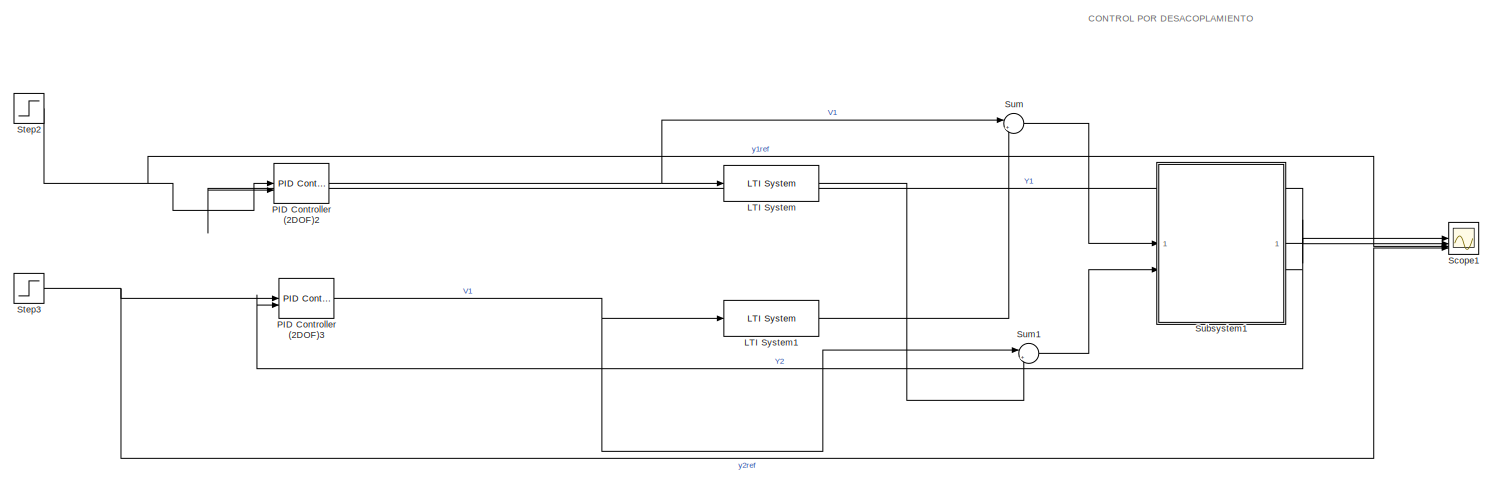
[diagram: root canvas - part 1/2, center side, full height]
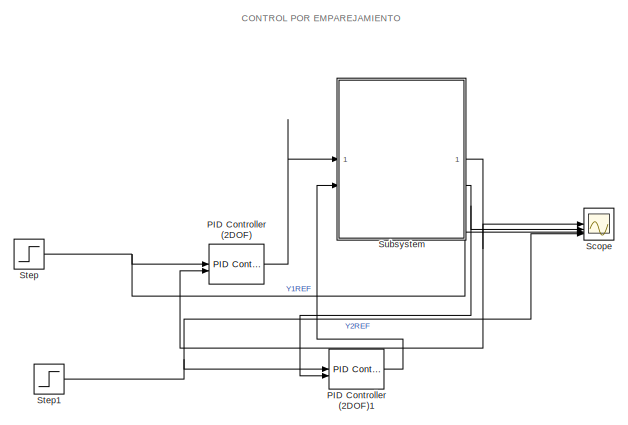
[diagram: root canvas - part 2/2, left side, full height]
MODEL slx_65c140ed6846
KIND model
CONFIG AbsTol = auto
CONFIG EnableMultiTasking = off
CONFIG FixedStep = auto
CONFIG MaxStep = auto
CONFIG MinStep = auto
CONFIG RelTol = 1e-3
CONFIG SampleTimeConstraint = Unconstrained
CONFIG SolverName = VariableStepAuto
CONFIG StartTime = 0.0
CONFIG StopTime = 300
BLOCK [Reference] LTI System  REF=cstblocks/LTI System
  SourceBlock = cstblocks/LTI System
  SourceType = LTI Block
BLOCK [Reference] LTI System1  REF=cstblocks/LTI System
  SourceBlock = cstblocks/LTI System
  SourceType = LTI Block
BLOCK [Reference] PID Controller (2DOF)  REF=slpidlib/PID Controller (2DOF)
  LibrarySourceBlock = simulink/Continuous/PID Controller (2DOF)
  SourceBlock = slpidlib/PID Controller (2DOF)
  SourceType = PID 2dof
BLOCK [Reference] PID Controller (2DOF)1  REF=slpidlib/PID Controller (2DOF)
  LibrarySourceBlock = simulink/Continuous/PID Controller (2DOF)
  SourceBlock = slpidlib/PID Controller (2DOF)
  SourceType = PID 2dof
BLOCK [Reference] PID Controller (2DOF)2  REF=slpidlib/PID Controller (2DOF)
  LibrarySourceBlock = simulink/Continuous/PID Controller (2DOF)
  SourceBlock = slpidlib/PID Controller (2DOF)
  SourceType = PID 2dof
BLOCK [Reference] PID Controller (2DOF)3  REF=slpidlib/PID Controller (2DOF)
  LibrarySourceBlock = simulink/Continuous/PID Controller (2DOF)
  SourceBlock = slpidlib/PID Controller (2DOF)
  SourceType = PID 2dof
BLOCK [Scope] Scope
  Floating = off
  NumInputPorts = 4
  ScopeSpecificationString = Simulink.scopes.TimeScopeBlockCfg('CurrentConfiguration', extmgr.ConfigurationSet(extmgr.Configuration('Core','General UI',true),extmgr.Configuration('Core','Source UI',true),extmgr.Configuration('Sources','WiredSimulink',true),extmgr.Configuration('Visuals','Time Domain',true,'SerializedDisplays',{struct('MinYLimReal','-0.19637','MaxYLimReal','1.37928','YLabelReal','','MinYLimMag','0.00000','MaxY...<+1794ch>
BLOCK [Scope] Scope1
  Floating = off
  NumInputPorts = 4
  ScopeSpecificationString = Simulink.scopes.TimeScopeBlockCfg('CurrentConfiguration', extmgr.ConfigurationSet(extmgr.Configuration('Core','General UI',true),extmgr.Configuration('Core','Source UI',true),extmgr.Configuration('Sources','WiredSimulink',true,'DataLoggingVariableName','ScopeData1'),extmgr.Configuration('Visuals','Time Domain',true,'SerializedDisplays',{struct('MinYLimReal','0.92169','MaxYLimReal','1.19134','YLabe...<+1812ch>
BLOCK [Step] Step
  SampleTime = 0
  Time = 100
BLOCK [Step] Step1
  SampleTime = 0
BLOCK [Step] Step2
  SampleTime = 0
  Time = 100
BLOCK [Step] Step3
  SampleTime = 0
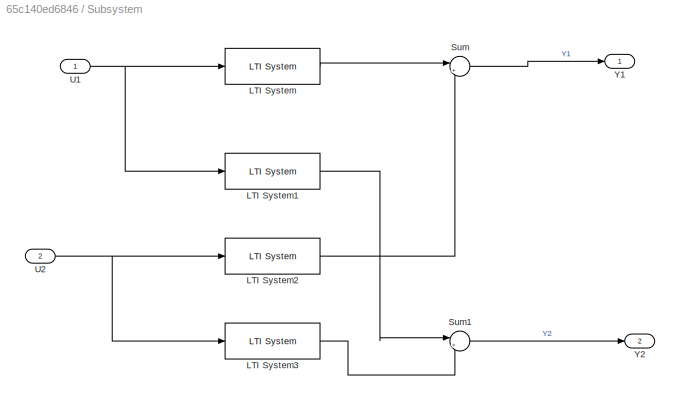
BLOCK [SubSystem] Subsystem
BLOCK [Reference] Subsystem/LTI System  REF=cstblocks/LTI System
  SourceBlock = cstblocks/LTI System
  SourceType = LTI Block
BLOCK [Reference] Subsystem/LTI System1  REF=cstblocks/LTI System
  SourceBlock = cstblocks/LTI System
  SourceType = LTI Block
BLOCK [Reference] Subsystem/LTI System2  REF=cstblocks/LTI System
  SourceBlock = cstblocks/LTI System
  SourceType = LTI Block
BLOCK [Reference] Subsystem/LTI System3  REF=cstblocks/LTI System
  SourceBlock = cstblocks/LTI System
  SourceType = LTI Block
BLOCK [Sum] Subsystem/Sum
  Inputs = |++
BLOCK [Sum] Subsystem/Sum1
  Inputs = |++
BLOCK [Inport] Subsystem/U1
BLOCK [Inport] Subsystem/U2
  Port = 2
BLOCK [Outport] Subsystem/Y1
BLOCK [Outport] Subsystem/Y2
  Port = 2
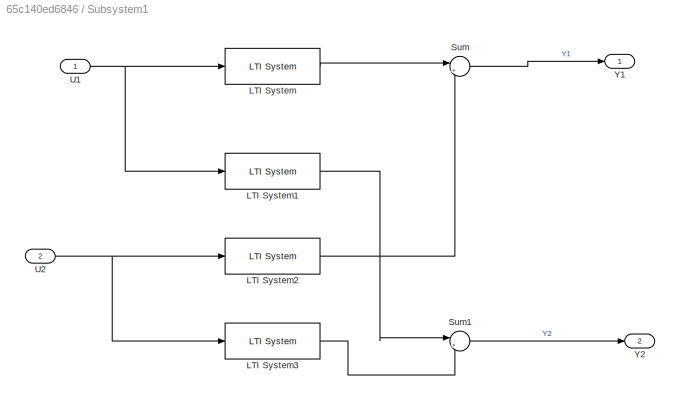
BLOCK [SubSystem] Subsystem1
BLOCK [Reference] Subsystem1/LTI System  REF=cstblocks/LTI System
  SourceBlock = cstblocks/LTI System
  SourceType = LTI Block
BLOCK [Reference] Subsystem1/LTI System1  REF=cstblocks/LTI System
  SourceBlock = cstblocks/LTI System
  SourceType = LTI Block
BLOCK [Reference] Subsystem1/LTI System2  REF=cstblocks/LTI System
  SourceBlock = cstblocks/LTI System
  SourceType = LTI Block
BLOCK [Reference] Subsystem1/LTI System3  REF=cstblocks/LTI System
  SourceBlock = cstblocks/LTI System
  SourceType = LTI Block
BLOCK [Sum] Subsystem1/Sum
  Inputs = |++
BLOCK [Sum] Subsystem1/Sum1
  Inputs = |++
BLOCK [Inport] Subsystem1/U1
BLOCK [Inport] Subsystem1/U2
  Port = 2
BLOCK [Outport] Subsystem1/Y1
BLOCK [Outport] Subsystem1/Y2
  Port = 2
BLOCK [Sum] Sum
  Inputs = |++
BLOCK [Sum] Sum1
  Inputs = |++
ANNOTATION (root): CONTROL POR DESACOPLAMIENTO
ANNOTATION (root): CONTROL POR EMPAREJAMIENTO
LINE LTI System1:1 -> Sum:2
LINE LTI System:1 -> Sum1:2
LINE PID Controller (2DOF)1:1 -> Subsystem:2
NET PID Controller (2DOF)2:1 -> LTI System:1, Sum:1
NET PID Controller (2DOF)3:1 -> LTI System1:1, Sum1:1
LINE PID Controller (2DOF):1 -> Subsystem:1
NET Step1:1 -> PID Controller (2DOF)1:1, Scope:4
NET Step2:1 -> PID Controller (2DOF)2:1, Scope1:3
NET Step3:1 -> PID Controller (2DOF)3:1, Scope1:4
NET Step:1 -> PID Controller (2DOF):1, Scope:3
LINE Subsystem/LTI System1:1 -> Subsystem/Sum1:1
LINE Subsystem/LTI System2:1 -> Subsystem/Sum:2
LINE Subsystem/LTI System3:1 -> Subsystem/Sum1:2
LINE Subsystem/LTI System:1 -> Subsystem/Sum:1
LINE Subsystem/Sum1:1 -> Subsystem/Y2:1
LINE Subsystem/Sum:1 -> Subsystem/Y1:1
NET Subsystem/U1:1 -> Subsystem/LTI System1:1, Subsystem/LTI System:1
NET Subsystem/U2:1 -> Subsystem/LTI System2:1, Subsystem/LTI System3:1
LINE Subsystem1/LTI System1:1 -> Subsystem1/Sum1:1
LINE Subsystem1/LTI System2:1 -> Subsystem1/Sum:2
LINE Subsystem1/LTI System3:1 -> Subsystem1/Sum1:2
LINE Subsystem1/LTI System:1 -> Subsystem1/Sum:1
LINE Subsystem1/Sum1:1 -> Subsystem1/Y2:1
LINE Subsystem1/Sum:1 -> Subsystem1/Y1:1
NET Subsystem1/U1:1 -> Subsystem1/LTI System1:1, Subsystem1/LTI System:1
NET Subsystem1/U2:1 -> Subsystem1/LTI System2:1, Subsystem1/LTI System3:1
NET Subsystem1:1 -> PID Controller (2DOF)2:2, Scope1:1
NET Subsystem1:2 -> PID Controller (2DOF)3:2, Scope1:2
NET Subsystem:1 -> PID Controller (2DOF):2, Scope:1
NET Subsystem:2 -> PID Controller (2DOF)1:2, Scope:2
LINE Sum1:1 -> Subsystem1:2
LINE Sum:1 -> Subsystem1:1
note: NET lines group one-source signal fan-out (src -> all destinations, sorted); 1:1 wires keep LINE
